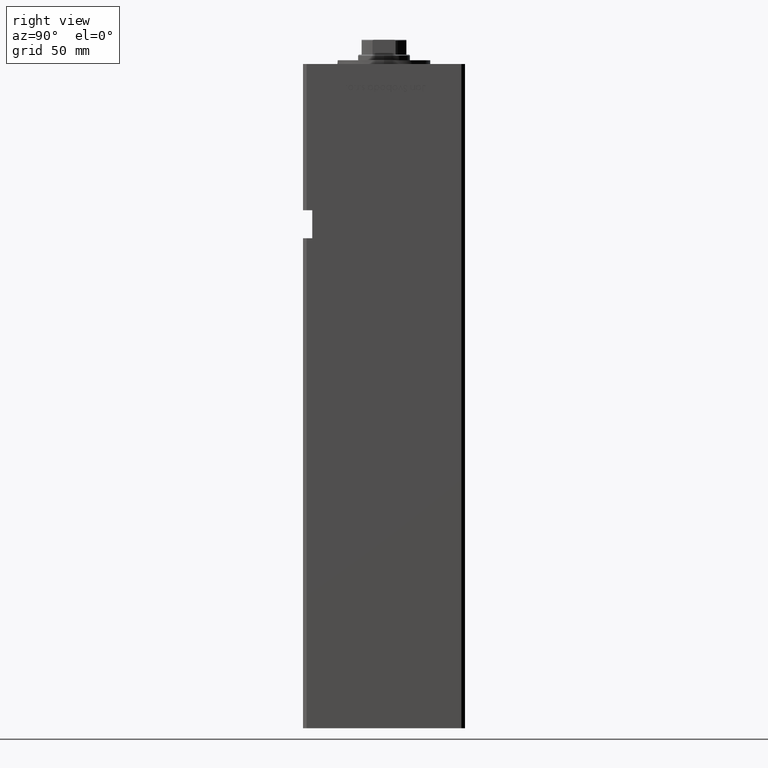
[diagram: clean part render]
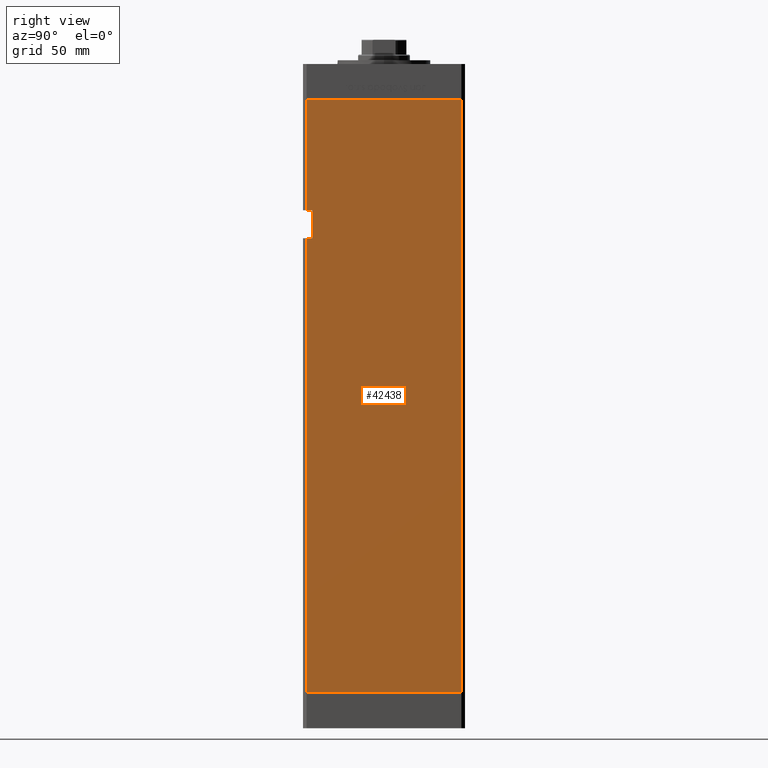
[diagram: same view with one face highlighted and labeled with its STEP entity id]
A machine part, right view. The second image highlights one B-rep face of the part: STEP entity #42438.
In plain terms, the highlighted planar face has unit normal (1, -0, 0).
Its self-contained STEP definition (entity closure, byte-faithful):
#1041 = EDGE_CURVE ( 'NONE', #29689, #7748, #32591, .T. ) ;
#1148 = LINE ( 'NONE', #38719, #3624 ) ;
#1937 = VECTOR ( 'NONE', #49906, 1000.000000000000000 ) ;
#2528 = CARTESIAN_POINT ( 'NONE',  ( 49.99999999999998579, -41.49999999999999289, 259.0000000000000000 ) ) ;
#2822 = VERTEX_POINT ( 'NONE', #7026 ) ;
#3327 = AXIS2_PLACEMENT_3D ( 'NONE', #53123, #49098, #32671 ) ;
#3624 = VECTOR ( 'NONE', #42770, 1000.000000000000000 ) ;
#3831 = DIRECTION ( 'NONE',  ( -3.344045254895050973E-16, -1.000000000000000000, 0.000000000000000000 ) ) ;
#4100 = LINE ( 'NONE', #28252, #42099 ) ;
#4932 = LINE ( 'NONE', #21287, #33841 ) ;
#6621 = VECTOR ( 'NONE', #13917, 1000.000000000000000 ) ;
#7026 = CARTESIAN_POINT ( 'NONE',  ( 49.99999999999998579, -38.50000000000000000, 259.0000000000000000 ) ) ;
#7748 = VERTEX_POINT ( 'NONE', #30966 ) ;
#8181 = ORIENTED_EDGE ( 'NONE', *, *, #30504, .T. ) ;
#11813 = ORIENTED_EDGE ( 'NONE', *, *, #17155, .F. ) ;
#12075 = ORIENTED_EDGE ( 'NONE', *, *, #52972, .T. ) ;
#12837 = CARTESIAN_POINT ( 'NONE',  ( 49.99999999999998579, -38.50000000000000000, 259.0000000000000000 ) ) ;
#13917 = DIRECTION ( 'NONE',  ( -0.000000000000000000, -0.000000000000000000, -1.000000000000000000 ) ) ;
#15247 = DIRECTION ( 'NONE',  ( -0.000000000000000000, -0.000000000000000000, -1.000000000000000000 ) ) ;
#17155 = EDGE_CURVE ( 'NONE', #7748, #38991, #1148, .T. ) ;
#19264 = CARTESIAN_POINT ( 'NONE',  ( 49.99999999999998579, -41.49999999999999289, 318.5000000000000000 ) ) ;
#19448 = DIRECTION ( 'NONE',  ( -0.000000000000000000, -0.000000000000000000, -1.000000000000000000 ) ) ;
#19532 = VERTEX_POINT ( 'NONE', #35421 ) ;
#20070 = DIRECTION ( 'NONE',  ( -0.000000000000000000, -0.000000000000000000, 1.000000000000000000 ) ) ;
#20322 = PLANE ( 'NONE',  #3327 ) ;
#20334 = LINE ( 'NONE', #36192, #48093 ) ;
#21287 = CARTESIAN_POINT ( 'NONE',  ( 49.99999999999998579, -38.50000000000000000, 244.0000000000000000 ) ) ;
#22069 = VECTOR ( 'NONE', #15247, 1000.000000000000000 ) ;
#22357 = CARTESIAN_POINT ( 'NONE',  ( 49.99999999999998579, -41.49999999999999289, 0.000000000000000000 ) ) ;
#22909 = EDGE_CURVE ( 'NONE', #2822, #33801, #45868, .T. ) ;
#23608 = EDGE_LOOP ( 'NONE', ( #8181, #51555, #11813, #40739, #12075, #49731, #25640, #34128 ) ) ;
#23742 = CARTESIAN_POINT ( 'NONE',  ( 50.00000000000001421, 41.49999999999999289, 318.5000000000000000 ) ) ;
#24530 = CARTESIAN_POINT ( 'NONE',  ( 50.00000000000001421, 41.49999999999999289, 318.5000000000000000 ) ) ;
#25640 = ORIENTED_EDGE ( 'NONE', *, *, #22909, .F. ) ;
#26239 = LINE ( 'NONE', #29499, #6621 ) ;
#28252 = CARTESIAN_POINT ( 'NONE',  ( 50.00000000000001421, 41.49999999999999289, 318.5000000000000000 ) ) ;
#29499 = CARTESIAN_POINT ( 'NONE',  ( 49.99999999999998579, -41.49999999999999289, 318.5000000000000000 ) ) ;
#29689 = VERTEX_POINT ( 'NONE', #24530 ) ;
#30504 = EDGE_CURVE ( 'NONE', #31836, #19532, #4932, .T. ) ;
#30966 = CARTESIAN_POINT ( 'NONE',  ( 50.00000000000001421, 41.49999999999999289, 0.000000000000000000 ) ) ;
#31836 = VERTEX_POINT ( 'NONE', #37944 ) ;
#32591 = LINE ( 'NONE', #23742, #42414 ) ;
#32671 = DIRECTION ( 'NONE',  ( 3.344045254895050480E-16, 1.000000000000000000, 0.000000000000000000 ) ) ;
#33801 = VERTEX_POINT ( 'NONE', #2528 ) ;
#33841 = VECTOR ( 'NONE', #34960, 1000.000000000000000 ) ;
#34128 = ORIENTED_EDGE ( 'NONE', *, *, #51617, .F. ) ;
#34960 = DIRECTION ( 'NONE',  ( -0.000000000000000000, -1.000000000000000000, -0.000000000000000000 ) ) ;
#35148 = VERTEX_POINT ( 'NONE', #47883 ) ;
#35421 = CARTESIAN_POINT ( 'NONE',  ( 49.99999999999998579, -41.49999999999999289, 244.0000000000000000 ) ) ;
#36192 = CARTESIAN_POINT ( 'NONE',  ( 49.99999999999998579, -38.50000000000000000, 259.0000000000000000 ) ) ;
#37823 = EDGE_CURVE ( 'NONE', #19532, #38991, #52601, .T. ) ;
#37944 = CARTESIAN_POINT ( 'NONE',  ( 49.99999999999998579, -38.49999999999999289, 244.0000000000000000 ) ) ;
#38719 = CARTESIAN_POINT ( 'NONE',  ( 50.00000000000001421, 41.49999999999999289, 0.000000000000000000 ) ) ;
#38991 = VERTEX_POINT ( 'NONE', #22357 ) ;
#40739 = ORIENTED_EDGE ( 'NONE', *, *, #1041, .F. ) ;
#40744 = FACE_OUTER_BOUND ( 'NONE', #23608, .T. ) ;
#41475 = EDGE_CURVE ( 'NONE', #35148, #33801, #26239, .T. ) ;
#42099 = VECTOR ( 'NONE', #3831, 1000.000000000000000 ) ;
#42414 = VECTOR ( 'NONE', #19448, 1000.000000000000000 ) ;
#42438 = ADVANCED_FACE ( 'NONE', ( #40744 ), #20322, .T. ) ;
#42770 = DIRECTION ( 'NONE',  ( -3.344045254895050973E-16, -1.000000000000000000, 0.000000000000000000 ) ) ;
#45868 = LINE ( 'NONE', #12837, #1937 ) ;
#47883 = CARTESIAN_POINT ( 'NONE',  ( 49.99999999999998579, -41.49999999999999289, 318.5000000000000000 ) ) ;
#48093 = VECTOR ( 'NONE', #20070, 1000.000000000000000 ) ;
#49098 = DIRECTION ( 'NONE',  ( 1.000000000000000000, -3.344045254895050480E-16, 0.000000000000000000 ) ) ;
#49731 = ORIENTED_EDGE ( 'NONE', *, *, #41475, .T. ) ;
#49906 = DIRECTION ( 'NONE',  ( -0.000000000000000000, -1.000000000000000000, -0.000000000000000000 ) ) ;
#51555 = ORIENTED_EDGE ( 'NONE', *, *, #37823, .T. ) ;
#51617 = EDGE_CURVE ( 'NONE', #31836, #2822, #20334, .T. ) ;
#52601 = LINE ( 'NONE', #19264, #22069 ) ;
#52972 = EDGE_CURVE ( 'NONE', #29689, #35148, #4100, .T. ) ;
#53123 = CARTESIAN_POINT ( 'NONE',  ( 50.00000000000001421, 41.49999999999999289, 318.5000000000000000 ) ) ;